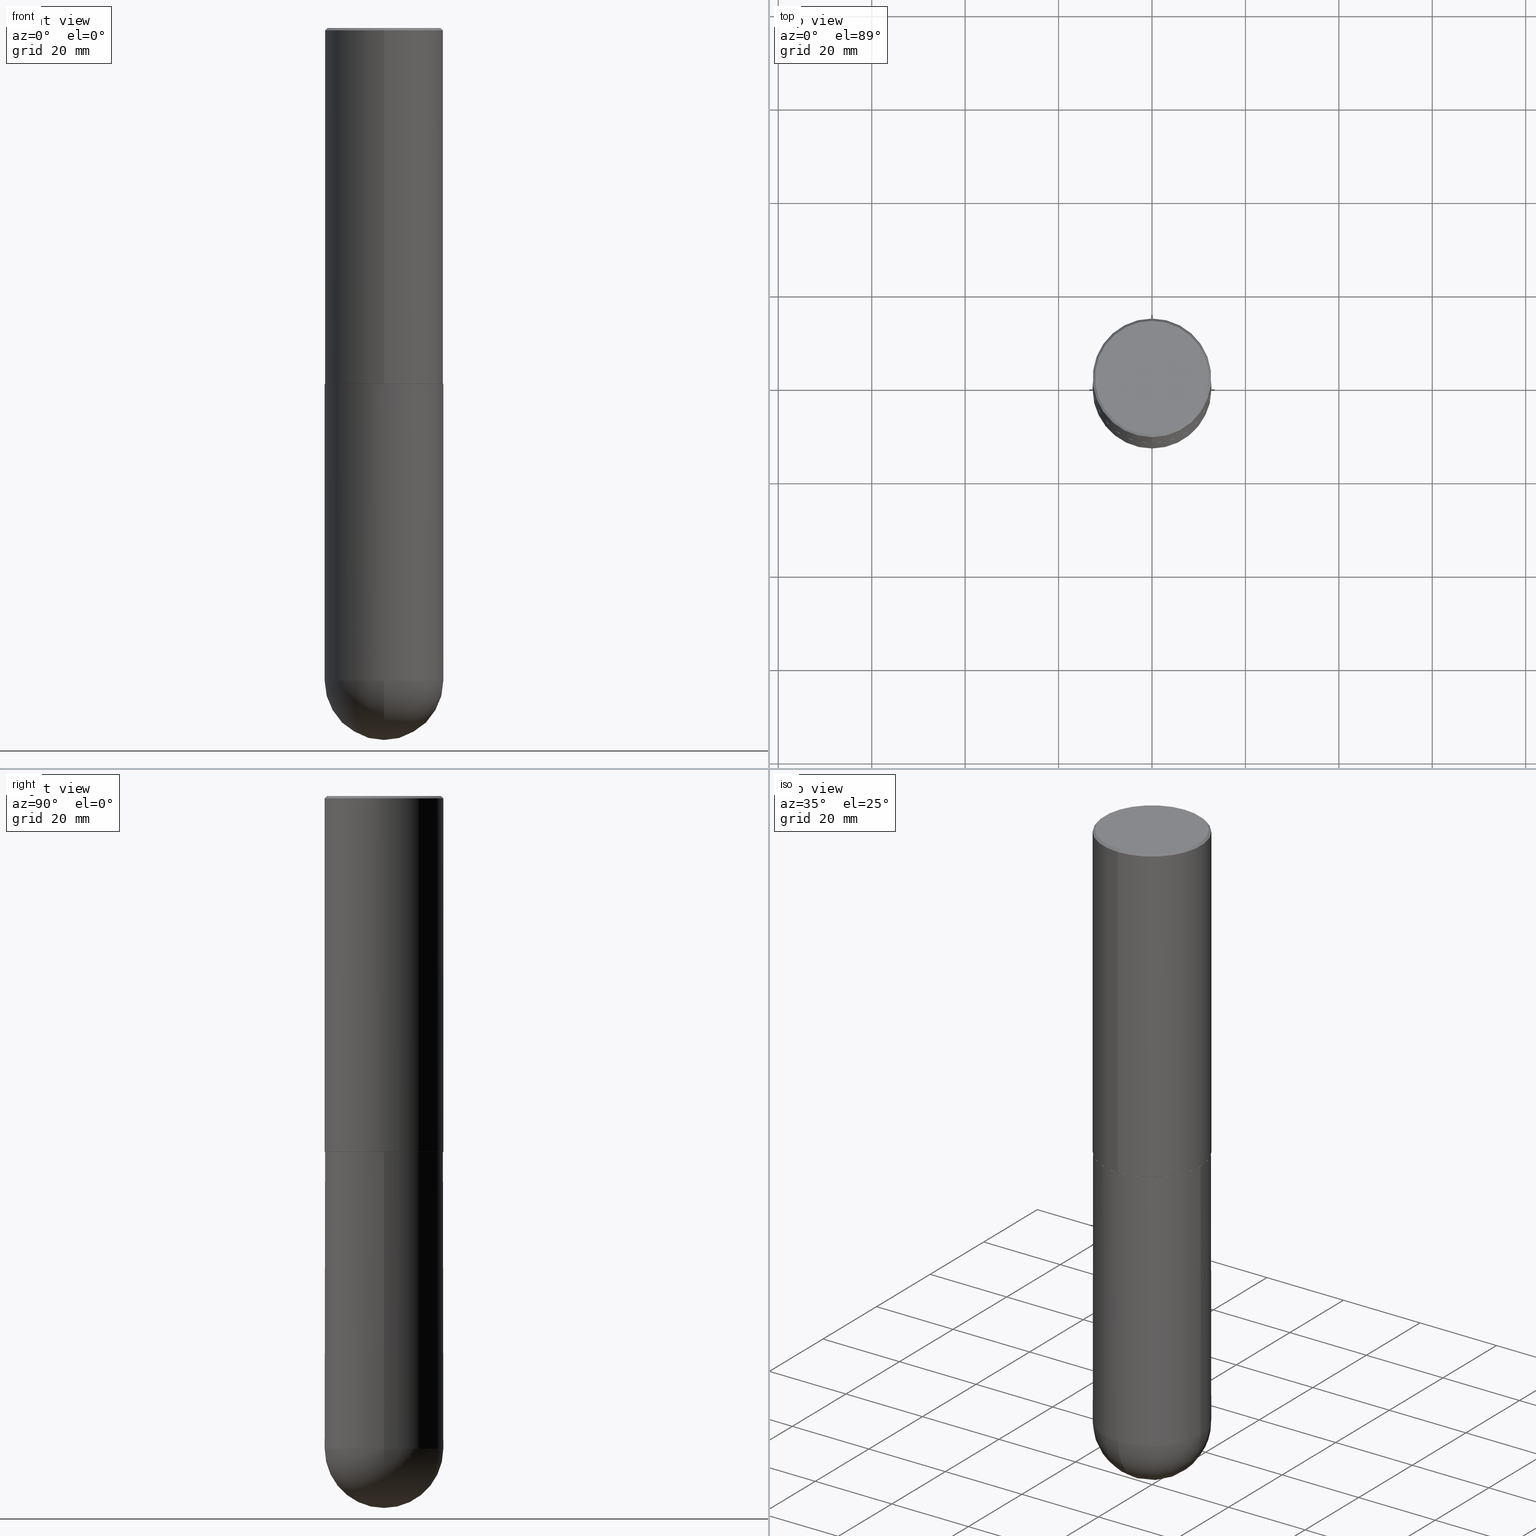
[diagram: canonical four-view strip — front | top / right | iso, engineering-drawing reading convention]
A machine part, canonical four-view strip (front | top / right | iso — engineering-drawing reading convention). The complete STEP part file that produces these views, byte-faithful:
ISO-10303-21;
HEADER;
FILE_DESCRIPTION (( 'STEP AP203' ),
    '1' );
FILE_NAME ('31977.STEP',
    '2024-02-21T17:24:39',
    ( '' ),
    ( '' ),
    'SwSTEP 2.0',
    'SolidWorks 2023',
    '' );
FILE_SCHEMA (( 'CONFIG_CONTROL_DESIGN' ));
ENDSEC;

DATA;
#1 = CC_DESIGN_APPROVAL ( #94, ( #129 ) ) ;
#2 = CALENDAR_DATE ( 2024, 21, 2 ) ;
#3 = CARTESIAN_POINT ( 'NONE',  ( 7.335068172451656657E-29, -1.047636046111825334E-14, -3.000000000000000888 ) ) ;
#4 = CC_DESIGN_PERSON_AND_ORGANIZATION_ASSIGNMENT ( #166, #67, ( #129 ) ) ;
#5 = PERSON_AND_ORGANIZATION ( #354, #120 ) ;
#6 = MANIFOLD_SOLID_BREP ( 'Body-Move/Copy2[2]', #269 ) ;
#7 = LINE ( 'NONE', #139, #23 ) ;
#8 = VERTEX_POINT ( 'NONE', #183 ) ;
#9 = CARTESIAN_POINT ( 'NONE',  ( 1.345007843401825128E-28, -1.920314736363730603E-14, -5.500000000000000888 ) ) ;
#10 = ORIENTED_EDGE ( 'NONE', *, *, #98, .T. ) ;
#11 = AXIS2_PLACEMENT_3D ( 'NONE', #382, #229, #253 ) ;
#12 =( GEOMETRIC_REPRESENTATION_CONTEXT ( 3 ) GLOBAL_UNCERTAINTY_ASSIGNED_CONTEXT ( ( #228 ) ) GLOBAL_UNIT_ASSIGNED_CONTEXT ( ( #390, #289, #410 ) ) REPRESENTATION_CONTEXT ( 'NONE', 'WORKASPACE' ) );
#13 = DIRECTION ( 'NONE',  ( -2.445468806185136597E-29, 3.491481338843145583E-15, 1.000000000000000000 ) ) ;
#14 = ORIENTED_EDGE ( 'NONE', *, *, #411, .F. ) ;
#15 = LINE ( 'NONE', #110, #125 ) ;
#16 = ORIENTED_EDGE ( 'NONE', *, *, #80, .F. ) ;
#17 = CARTESIAN_POINT ( 'NONE',  ( 2.368360758220746932E-44, -3.382627185153323698E-30, -9.686457041185830864E-16 ) ) ;
#18 = CC_DESIGN_PERSON_AND_ORGANIZATION_ASSIGNMENT ( #71, #138, ( #56 ) ) ;
#19 = APPROVAL_ROLE ( '' ) ;
#20 = ORIENTED_EDGE ( 'NONE', *, *, #197, .F. ) ;
#21 = PLANE ( 'NONE',  #60 ) ;
#22 = AXIS2_PLACEMENT_3D ( 'NONE', #36, #220, #196 ) ;
#23 = VECTOR ( 'NONE', #391, 39.37007874015748143 ) ;
#24 = EDGE_CURVE ( 'NONE', #262, #86, #57, .T. ) ;
#25 = FACE_OUTER_BOUND ( 'NONE', #116, .T. ) ;
#26 = EDGE_LOOP ( 'NONE', ( #122, #43, #49, #178, #301 ) ) ;
#27 = APPROVAL ( #108, 'UNSPECIFIED' ) ;
#28 = CLOSED_SHELL ( 'NONE', ( #292, #155, #376, #357, #127 ) ) ;
#29 = CYLINDRICAL_SURFACE ( 'NONE', #102, 0.5000000000000002220 ) ;
#30 = LOCAL_TIME ( 12, 24, 39.00000000000000000, #224 ) ;
#31 = DIRECTION ( 'NONE',  ( -1.000000000000000000, 7.105427357601001070E-15, -4.926315508542082329E-29 ) ) ;
#32 = CARTESIAN_POINT ( 'NONE',  ( 4.890045448301129813E-31, -6.984240307412204920E-17, -0.02000000000000010797 ) ) ;
#33 = EDGE_CURVE ( 'NONE', #97, #173, #272, .T. ) ;
#34 = AXIS2_PLACEMENT_3D ( 'NONE', #17, #394, #205 ) ;
#35 = FACE_OUTER_BOUND ( 'NONE', #180, .T. ) ;
#36 = CARTESIAN_POINT ( 'NONE',  ( 3.351822085289413859E-15, 0.4800000000000008704, -2.160540525838214906E-15 ) ) ;
#37 = ADVANCED_FACE ( 'NONE', ( #186 ), #29, .T. ) ;
#38 = CC_DESIGN_PERSON_AND_ORGANIZATION_ASSIGNMENT ( #132, #63, ( #370 ) ) ;
#39 = CARTESIAN_POINT ( 'NONE',  ( 7.336406418555409790E-29, -1.047444401652943635E-14, -3.000000000000000444 ) ) ;
#40 = CIRCLE ( 'NONE', #319, 0.4989999999999999991 ) ;
#41 = DATE_AND_TIME ( #2, #111 ) ;
#42 = CARTESIAN_POINT ( 'NONE',  ( 4.890045448301129813E-31, -6.984240307412204920E-17, -0.02000000000000010797 ) ) ;
#43 = ORIENTED_EDGE ( 'NONE', *, *, #305, .T. ) ;
#44 = DATE_AND_TIME ( #130, #182 ) ;
#45 = ORIENTED_EDGE ( 'NONE', *, *, #189, .T. ) ;
#46 = PRODUCT_DEFINITION_SHAPE ( 'NONE', 'NONE',  #370 ) ;
#47 = DIRECTION ( 'NONE',  ( -2.445468806185136877E-29, 3.491481338843145188E-15, 1.000000000000000000 ) ) ;
#48 = ORIENTED_EDGE ( 'NONE', *, *, #298, .T. ) ;
#49 = ORIENTED_EDGE ( 'NONE', *, *, #408, .T. ) ;
#50 = LINE ( 'NONE', #172, #250 ) ;
#51 = ORIENTED_EDGE ( 'NONE', *, *, #298, .F. ) ;
#52 = ADVANCED_FACE ( 'NONE', ( #25 ), #192, .T. ) ;
#53 = DIRECTION ( 'NONE',  ( -6.982962677686265922E-15, -1.000000000000000000, 3.284787166730577015E-15 ) ) ;
#54 = EDGE_LOOP ( 'NONE', ( #281, #392, #140, #333, #307 ) ) ;
#55 = DIRECTION ( 'NONE',  ( 1.000000000000000000, -6.982962677686265922E-15, 4.883557194083112340E-29 ) ) ;
#56 = SECURITY_CLASSIFICATION ( '', '', #313 ) ;
#57 = LINE ( 'NONE', #185, #95 ) ;
#58 = DIRECTION ( 'NONE',  ( -6.982962677686265922E-15, -1.000000000000000000, 3.492120153706083922E-15 ) ) ;
#59 = DIRECTION ( 'NONE',  ( 6.982962677686265922E-15, 1.000000000000000000, -3.491643216902136408E-15 ) ) ;
#60 = AXIS2_PLACEMENT_3D ( 'NONE', #271, #361, #81 ) ;
#61 = EDGE_CURVE ( 'NONE', #262, #204, #150, .T. ) ;
#62 = DIRECTION ( 'NONE',  ( -2.445468806185136597E-29, 3.491481338843145583E-15, 1.000000000000000000 ) ) ;
#63 = PERSON_AND_ORGANIZATION_ROLE ( 'creator' ) ;
#64 = DIRECTION ( 'NONE',  ( 6.982962677686265922E-15, 1.000000000000000000, -3.491643216902136408E-15 ) ) ;
#65 = AXIS2_PLACEMENT_3D ( 'NONE', #99, #340, #223 ) ;
#66 = APPROVAL_PERSON_ORGANIZATION ( #69, #94, #198 ) ;
#67 = PERSON_AND_ORGANIZATION_ROLE ( 'design_supplier' ) ;
#68 = CARTESIAN_POINT ( 'NONE',  ( 1.345007843401825128E-28, -1.920314736363730603E-14, -5.500000000000000888 ) ) ;
#69 = PERSON_AND_ORGANIZATION ( #354, #120 ) ;
#70 = DIRECTION ( 'NONE',  ( -2.445468806185136597E-29, 3.491481338843145583E-15, 1.000000000000000000 ) ) ;
#71 = PERSON_AND_ORGANIZATION ( #354, #120 ) ;
#72 = CYLINDRICAL_SURFACE ( 'NONE', #90, 0.5000000000000002220 ) ;
#73 = APPROVAL_PERSON_ORGANIZATION ( #283, #27, #351 ) ;
#74 = APPROVAL_DATE_TIME ( #44, #94 ) ;
#75 = ORIENTED_EDGE ( 'NONE', *, *, #338, .T. ) ;
#76 = DIRECTION ( 'NONE',  ( -2.445022724150551752E-29, 3.492120153706083922E-15, 1.000000000000000000 ) ) ;
#77 = ADVANCED_BREP_SHAPE_REPRESENTATION ( '31977', ( #276, #6, #308 ), #12 ) ;
#78 = SHAPE_DEFINITION_REPRESENTATION ( #46, #77 ) ;
#79 = ORIENTED_EDGE ( 'NONE', *, *, #161, .F. ) ;
#80 = EDGE_CURVE ( 'NONE', #264, #8, #278, .T. ) ;
#81 = DIRECTION ( 'NONE',  ( -1.000000000000000000, 6.982962677686265922E-15, -4.876176775795935793E-29 ) ) ;
#82 = ORIENTED_EDGE ( 'NONE', *, *, #408, .F. ) ;
#83 = CARTESIAN_POINT ( 'NONE',  ( -3.430248998885764992E-15, -0.5000000000000001110, -0.01999999999999835937 ) ) ;
#84 = EDGE_LOOP ( 'NONE', ( #14, #401, #259, #267 ) ) ;
#85 = AXIS2_PLACEMENT_3D ( 'NONE', #399, #181, #121 ) ;
#86 = VERTEX_POINT ( 'NONE', #282 ) ;
#87 = DIRECTION ( 'NONE',  ( -6.982962677686265133E-15, -1.000000000000000000, 3.278217592397113101E-15 ) ) ;
#88 = DATE_AND_TIME ( #234, #295 ) ;
#89 = ADVANCED_FACE ( 'NONE', ( #255 ), #256, .F. ) ;
#90 = AXIS2_PLACEMENT_3D ( 'NONE', #320, #169, #288 ) ;
#91 = DIRECTION ( 'NONE',  ( -2.445022724150551752E-29, 3.492120153706083922E-15, 1.000000000000000000 ) ) ;
#92 = DIRECTION ( 'NONE',  ( -6.982962677686265922E-15, -1.000000000000000000, 3.492120153706083528E-15 ) ) ;
#93 = EDGE_LOOP ( 'NONE', ( #331, #145, #206, #275 ) ) ;
#94 = APPROVAL ( #200, 'UNSPECIFIED' ) ;
#95 = VECTOR ( 'NONE', #219, 39.37007874015748143 ) ;
#96 = CIRCLE ( 'NONE', #367, 0.5000000000000000000 ) ;
#97 = VERTEX_POINT ( 'NONE', #231 ) ;
#98 = EDGE_CURVE ( 'NONE', #156, #171, #249, .T. ) ;
#99 = CARTESIAN_POINT ( 'NONE',  ( 1.311895865610436840E-28, -1.967732973177735475E-14, -5.500000000000000888 ) ) ;
#100 = COORDINATED_UNIVERSAL_TIME_OFFSET ( 5, 0, .BEHIND. ) ;
#101 = DIRECTION ( 'NONE',  ( 1.000000000000000000, -6.982962677686266711E-15, 4.876176775795935793E-29 ) ) ;
#102 = AXIS2_PLACEMENT_3D ( 'NONE', #274, #404, #92 ) ;
#103 = AXIS2_PLACEMENT_3D ( 'NONE', #42, #311, #64 ) ;
#104 = DIMENSIONAL_EXPONENTS ( 1.000000000000000000, 0.000000000000000000, 0.000000000000000000, 0.000000000000000000, 0.000000000000000000, 0.000000000000000000, 0.000000000000000000 ) ;
#105 = MECHANICAL_CONTEXT ( 'NONE', #306, 'mechanical' ) ;
#106 = CARTESIAN_POINT ( 'NONE',  ( 3.549160965121774973E-15, 0.4989999999999895630, -3.000000000000002220 ) ) ;
#107 = CARTESIAN_POINT ( 'NONE',  ( 3.491481338843133355E-15, 0.4999999999999999445, -0.02000000000000185310 ) ) ;
#108 = APPROVAL_STATUS ( 'not_yet_approved' ) ;
#109 = PRODUCT_RELATED_PRODUCT_CATEGORY ( 'detail', '', ( #245 ) ) ;
#110 = CARTESIAN_POINT ( 'NONE',  ( -3.484498376165373188E-15, -0.4990000000000104352, -2.999999999999999112 ) ) ;
#111 = LOCAL_TIME ( 12, 24, 39.00000000000000000, #285 ) ;
#112 = ORIENTED_EDGE ( 'NONE', *, *, #184, .F. ) ;
#113 = DIRECTION ( 'NONE',  ( -2.445468806185136597E-29, 3.491481338843145583E-15, 1.000000000000000000 ) ) ;
#114 = ORIENTED_EDGE ( 'NONE', *, *, #33, .T. ) ;
#115 = FACE_OUTER_BOUND ( 'NONE', #176, .T. ) ;
#116 = EDGE_LOOP ( 'NONE', ( #329, #51, #248, #75 ) ) ;
#117 = CARTESIAN_POINT ( 'NONE',  ( -0.5000000000000000000, -1.128608201128287263E-14, -5.500000000000000888 ) ) ;
#118 = CC_DESIGN_PERSON_AND_ORGANIZATION_ASSIGNMENT ( #5, #232, ( #245 ) ) ;
#119 = ORIENTED_EDGE ( 'NONE', *, *, #61, .T. ) ;
#120 = ORGANIZATION ( 'UNSPECIFIED', 'UNSPECIFIED', '' ) ;
#121 = DIRECTION ( 'NONE',  ( -6.982962677686265922E-15, -1.000000000000000000, 3.491643216902136408E-15 ) ) ;
#122 = ORIENTED_EDGE ( 'NONE', *, *, #133, .F. ) ;
#123 = ADVANCED_FACE ( 'NONE', ( #35 ), #312, .T. ) ;
#124 = AXIS2_PLACEMENT_3D ( 'NONE', #39, #131, #134 ) ;
#125 = VECTOR ( 'NONE', #366, 39.37007874015748854 ) ;
#126 = CONICAL_SURFACE ( 'NONE', #373, 0.4989999999999999991, 0.7853981633974824739 ) ;
#127 = ADVANCED_FACE ( 'NONE', ( #350 ), #193, .T. ) ;
#128 = DIRECTION ( 'NONE',  ( -2.445022724150551752E-29, 3.492120153706083922E-15, 1.000000000000000000 ) ) ;
#129 = PRODUCT_DEFINITION_FORMATION_WITH_SPECIFIED_SOURCE ( 'ANY', '', #245, .NOT_KNOWN. ) ;
#130 = CALENDAR_DATE ( 2024, 21, 2 ) ;
#131 = DIRECTION ( 'NONE',  ( -2.445468806185136597E-29, 3.491481338843145583E-15, 1.000000000000000000 ) ) ;
#132 = PERSON_AND_ORGANIZATION ( #354, #120 ) ;
#133 = EDGE_CURVE ( 'NONE', #398, #171, #226, .T. ) ;
#134 = DIRECTION ( 'NONE',  ( 1.000000000000000000, -6.982962677686266711E-15, 0.000000000000000000 ) ) ;
#135 = PLANE ( 'NONE',  #343 ) ;
#136 = AXIS2_PLACEMENT_3D ( 'NONE', #210, #13, #207 ) ;
#137 = DIRECTION ( 'NONE',  ( -6.982962677686265922E-15, -1.000000000000000000, 3.284787166730577015E-15 ) ) ;
#138 = PERSON_AND_ORGANIZATION_ROLE ( 'classification_officer' ) ;
#139 = CARTESIAN_POINT ( 'NONE',  ( -3.430248998885764992E-15, -0.5000000000000001110, -0.01999999999999835937 ) ) ;
#140 = ORIENTED_EDGE ( 'NONE', *, *, #98, .F. ) ;
#141 = DIRECTION ( 'NONE',  ( -2.445022724150551752E-29, 3.492120153706083922E-15, 1.000000000000000000 ) ) ;
#142 = CIRCLE ( 'NONE', #218, 0.5000000000000000000 ) ;
#143 = EDGE_LOOP ( 'NONE', ( #48, #114 ) ) ;
#144 = CARTESIAN_POINT ( 'NONE',  ( 3.491481338843267462E-15, 0.4999999999999808487, -5.500000000000002665 ) ) ;
#145 = ORIENTED_EDGE ( 'NONE', *, *, #24, .T. ) ;
#146 = DIRECTION ( 'NONE',  ( -2.445022724150551752E-29, 3.492120153706083922E-15, 1.000000000000000000 ) ) ;
#147 = ORIENTED_EDGE ( 'NONE', *, *, #237, .T. ) ;
#148 = DIRECTION ( 'NONE',  ( 6.982962677686265922E-15, 1.000000000000000000, 0.000000000000000000 ) ) ;
#149 = COORDINATED_UNIVERSAL_TIME_OFFSET ( 5, 0, .BEHIND. ) ;
#150 = CIRCLE ( 'NONE', #377, 0.5000000000000004441 ) ;
#151 = ORIENTED_EDGE ( 'NONE', *, *, #80, .T. ) ;
#152 = CONICAL_SURFACE ( 'NONE', #103, 0.5000000000000000000, 0.7853981633974473908 ) ;
#153 = CARTESIAN_POINT ( 'NONE',  ( 0.5000000000000000000, -3.491481338843133355E-15, 2.438088387897967896E-29 ) ) ;
#154 = DIRECTION ( 'NONE',  ( -6.982962677686265133E-15, -1.000000000000000000, 3.278217592397113101E-15 ) ) ;
#155 = ADVANCED_FACE ( 'NONE', ( #380 ), #199, .T. ) ;
#156 = VERTEX_POINT ( 'NONE', #348 ) ;
#157 = ADVANCED_FACE ( 'NONE', ( #317 ), #135, .F. ) ;
#158 = AXIS2_PLACEMENT_3D ( 'NONE', #190, #70, #101 ) ;
#159 = DIRECTION ( 'NONE',  ( -6.982962677686265922E-15, -1.000000000000000000, 3.491643216902136408E-15 ) ) ;
#160 = AXIS2_PLACEMENT_3D ( 'NONE', #236, #327, #53 ) ;
#161 = EDGE_CURVE ( 'NONE', #299, #397, #174, .T. ) ;
#162 = CC_DESIGN_DATE_AND_TIME_ASSIGNMENT ( #227, #195, ( #370 ) ) ;
#163 = LENGTH_MEASURE_WITH_UNIT ( LENGTH_MEASURE( 0.02539999999999999897 ), #345 );
#164 = DIRECTION ( 'NONE',  ( 1.000000000000000000, -6.982962677686270655E-15, 0.000000000000000000 ) ) ;
#165 = DIRECTION ( 'NONE',  ( -2.445468806185136877E-29, 3.491481338843145188E-15, 1.000000000000000000 ) ) ;
#166 = PERSON_AND_ORGANIZATION ( #354, #120 ) ;
#167 = CARTESIAN_POINT ( 'NONE',  ( 7.335068172451655536E-29, -1.047636046111825177E-14, -3.000000000000000444 ) ) ;
#168 = ADVANCED_FACE ( 'NONE', ( #315 ), #152, .T. ) ;
#169 = DIRECTION ( 'NONE',  ( -2.445022724150551752E-29, 3.492120153706083922E-15, 1.000000000000000000 ) ) ;
#170 = DIRECTION ( 'NONE',  ( 5.024295867788231995E-15, 0.7071067811865739960, 0.7071067811865208164 ) ) ;
#171 = VERTEX_POINT ( 'NONE', #314 ) ;
#172 = CARTESIAN_POINT ( 'NONE',  ( -3.491481338843134539E-15, -0.5000000000000002220, 1.746060076853042553E-15 ) ) ;
#173 = VERTEX_POINT ( 'NONE', #388 ) ;
#174 = CIRCLE ( 'NONE', #402, 0.5000000000000000000 ) ;
#175 = LOCAL_TIME ( 12, 24, 39.00000000000000000, #381 ) ;
#176 = EDGE_LOOP ( 'NONE', ( #10, #365 ) ) ;
#177 = DIRECTION ( 'NONE',  ( 1.000000000000000000, -6.982962677686266711E-15, 0.000000000000000000 ) ) ;
#178 = ORIENTED_EDGE ( 'NONE', *, *, #284, .T. ) ;
#179 = DIRECTION ( 'NONE',  ( -6.982962677686265922E-15, -1.000000000000000000, 3.284787166730577015E-15 ) ) ;
#180 = EDGE_LOOP ( 'NONE', ( #147, #265, #326, #363 ) ) ;
#181 = DIRECTION ( 'NONE',  ( -2.445022724150551752E-29, 3.492120153706083922E-15, 1.000000000000000000 ) ) ;
#182 = LOCAL_TIME ( 12, 24, 39.00000000000000000, #100 ) ;
#183 = CARTESIAN_POINT ( 'NONE',  ( -3.552713678800369978E-15, -0.5000000000000196509, -5.499999999999999112 ) ) ;
#184 = EDGE_CURVE ( 'NONE', #209, #356, #40, .T. ) ;
#185 = CARTESIAN_POINT ( 'NONE',  ( 3.552713678800501718E-15, 0.5000000000000002220, -1.746060076853042553E-15 ) ) ;
#186 = FACE_OUTER_BOUND ( 'NONE', #93, .T. ) ;
#187 = AXIS2_PLACEMENT_3D ( 'NONE', #241, #389, #379 ) ;
#188 = CARTESIAN_POINT ( 'NONE',  ( 1.311895865610436840E-28, -1.967732973177735475E-14, -5.500000000000000888 ) ) ;
#189 = EDGE_CURVE ( 'NONE', #242, #86, #142, .T. ) ;
#190 = CARTESIAN_POINT ( 'NONE',  ( 0.000000000000000000, 0.000000000000000000, 0.000000000000000000 ) ) ;
#191 = APPROVAL_DATE_TIME ( #355, #27 ) ;
#192 = CONICAL_SURFACE ( 'NONE', #216, 0.5000000000000000000, 0.7853981633974473908 ) ;
#193 = CYLINDRICAL_SURFACE ( 'NONE', #158, 0.5000000000000000000 ) ;
#194 = CIRCLE ( 'NONE', #34, 0.4800000000000008704 ) ;
#195 = DATE_TIME_ROLE ( 'creation_date' ) ;
#196 = DIRECTION ( 'NONE',  ( 6.982962677686265922E-15, 1.000000000000000000, -3.492120153706083922E-15 ) ) ;
#197 = EDGE_CURVE ( 'NONE', #173, #86, #280, .T. ) ;
#198 = APPROVAL_ROLE ( '' ) ;
#199 = SPHERICAL_SURFACE ( 'NONE', #65, 0.5000000000000005551 ) ;
#200 = APPROVAL_STATUS ( 'not_yet_approved' ) ;
#201 = DIRECTION ( 'NONE',  ( -7.105427357601000281E-15, -1.000000000000000000, 0.000000000000000000 ) ) ;
#202 = AXIS2_PLACEMENT_3D ( 'NONE', #188, #31, #201 ) ;
#203 = PERSON_AND_ORGANIZATION_ROLE ( 'creator' ) ;
#204 = VERTEX_POINT ( 'NONE', #385 ) ;
#205 = DIRECTION ( 'NONE',  ( -6.982962677686265922E-15, -1.000000000000000000, 3.492120153706083922E-15 ) ) ;
#206 = ORIENTED_EDGE ( 'NONE', *, *, #189, .F. ) ;
#207 = DIRECTION ( 'NONE',  ( 1.000000000000000000, -6.982962677686270655E-15, 0.000000000000000000 ) ) ;
#208 = DATE_TIME_ROLE ( 'classification_date' ) ;
#209 = VERTEX_POINT ( 'NONE', #106 ) ;
#210 = CARTESIAN_POINT ( 'NONE',  ( 1.345007843401825128E-28, -1.920314736363730603E-14, -5.500000000000000888 ) ) ;
#211 = AXIS2_PLACEMENT_3D ( 'NONE', #364, #113, #177 ) ;
#212 = ORIENTED_EDGE ( 'NONE', *, *, #305, .F. ) ;
#213 = FACE_OUTER_BOUND ( 'NONE', #54, .T. ) ;
#214 = EDGE_LOOP ( 'NONE', ( #324, #119, #374, #235 ) ) ;
#215 = DIRECTION ( 'NONE',  ( -2.445468806185136597E-29, 3.491481338843145583E-15, 1.000000000000000000 ) ) ;
#216 = AXIS2_PLACEMENT_3D ( 'NONE', #337, #304, #59 ) ;
#217 = CIRCLE ( 'NONE', #187, 0.5000000000000000000 ) ;
#218 = AXIS2_PLACEMENT_3D ( 'NONE', #32, #412, #159 ) ;
#219 = DIRECTION ( 'NONE',  ( -2.445022724150551752E-29, 3.492120153706083922E-15, 1.000000000000000000 ) ) ;
#220 = DIRECTION ( 'NONE',  ( 2.445022724150551191E-29, -3.492120153706083922E-15, -1.000000000000000000 ) ) ;
#221 = CARTESIAN_POINT ( 'NONE',  ( 0.000000000000000000, 0.000000000000000000, 0.000000000000000000 ) ) ;
#222 = ADVANCED_FACE ( 'NONE', ( #407 ), #72, .T. ) ;
#223 = DIRECTION ( 'NONE',  ( 6.982962677686265922E-15, 1.000000000000000000, -4.370956789862816416E-15 ) ) ;
#224 = COORDINATED_UNIVERSAL_TIME_OFFSET ( 5, 0, .BEHIND. ) ;
#225 = CC_DESIGN_SECURITY_CLASSIFICATION ( #56, ( #129 ) ) ;
#226 = LINE ( 'NONE', #409, #246 ) ;
#227 = DATE_AND_TIME ( #318, #175 ) ;
#228 = UNCERTAINTY_MEASURE_WITH_UNIT (LENGTH_MEASURE( 1.000000000000000082E-05 ), #390, 'distance_accuracy_value', 'NONE');
#229 = DIRECTION ( 'NONE',  ( -2.445022724150551752E-29, 3.492120153706083922E-15, 1.000000000000000000 ) ) ;
#230 = EDGE_CURVE ( 'NONE', #97, #242, #7, .T. ) ;
#231 = CARTESIAN_POINT ( 'NONE',  ( -3.361644018908052816E-15, -0.4800000000000008704, 7.075719696603405724E-16 ) ) ;
#232 = PERSON_AND_ORGANIZATION_ROLE ( 'design_owner' ) ;
#233 = CYLINDRICAL_SURFACE ( 'NONE', #406, 0.5000000000000000000 ) ;
#234 = CALENDAR_DATE ( 2024, 21, 2 ) ;
#235 = ORIENTED_EDGE ( 'NONE', *, *, #338, .F. ) ;
#236 = CARTESIAN_POINT ( 'NONE',  ( 7.335068172451656657E-29, -1.047636046111825334E-14, -3.000000000000000888 ) ) ;
#237 = EDGE_CURVE ( 'NONE', #356, #209, #273, .T. ) ;
#238 = EDGE_LOOP ( 'NONE', ( #296, #112 ) ) ;
#239 = CARTESIAN_POINT ( 'NONE',  ( 7.335068172451656657E-29, -1.047636046111825334E-14, -3.000000000000000888 ) ) ;
#240 = ORIENTED_EDGE ( 'NONE', *, *, #371, .F. ) ;
#241 = CARTESIAN_POINT ( 'NONE',  ( 1.345007843401825128E-28, -1.920314736363730603E-14, -5.500000000000000888 ) ) ;
#242 = VERTEX_POINT ( 'NONE', #83 ) ;
#243 = CARTESIAN_POINT ( 'NONE',  ( 7.332623149727504925E-29, -1.047286834096454774E-14, -2.999000000000000554 ) ) ;
#244 = EDGE_CURVE ( 'NONE', #356, #204, #15, .T. ) ;
#245 = PRODUCT ( '31977', '31977', '', ( #105 ) ) ;
#246 = VECTOR ( 'NONE', #165, 39.37007874015748143 ) ;
#247 = CC_DESIGN_APPROVAL ( #27, ( #370 ) ) ;
#248 = ORIENTED_EDGE ( 'NONE', *, *, #197, .T. ) ;
#249 = CIRCLE ( 'NONE', #124, 0.5000000000000000000 ) ;
#250 = VECTOR ( 'NONE', #76, 39.37007874015748143 ) ;
#251 = EDGE_CURVE ( 'NONE', #204, #242, #50, .T. ) ;
#252 = APPLICATION_PROTOCOL_DEFINITION ( 'international standard', 'config_control_design', 1994, #395 ) ;
#253 = DIRECTION ( 'NONE',  ( -6.982962677686265922E-15, -1.000000000000000000, 3.284787166730577015E-15 ) ) ;
#254 = CALENDAR_DATE ( 2024, 21, 2 ) ;
#255 = FACE_OUTER_BOUND ( 'NONE', #143, .T. ) ;
#256 = PLANE ( 'NONE',  #22 ) ;
#257 = DIRECTION ( 'NONE',  ( -2.445022724150551752E-29, 3.492120153706083922E-15, 1.000000000000000000 ) ) ;
#258 = PERSON_AND_ORGANIZATION ( #354, #120 ) ;
#259 = ORIENTED_EDGE ( 'NONE', *, *, #244, .T. ) ;
#260 = CARTESIAN_POINT ( 'NONE',  ( 3.552713678800539584E-15, 0.4999999999999900080, -2.999000000000001886 ) ) ;
#261 = AXIS2_PLACEMENT_3D ( 'NONE', #396, #266, #297 ) ;
#262 = VERTEX_POINT ( 'NONE', #260 ) ;
#263 = SPHERICAL_SURFACE ( 'NONE', #261, 0.5000000000000005551 ) ;
#264 = VERTEX_POINT ( 'NONE', #369 ) ;
#265 = ORIENTED_EDGE ( 'NONE', *, *, #411, .T. ) ;
#266 = DIRECTION ( 'NONE',  ( -1.000000000000000000, 6.982962677686265922E-15, -4.883557194083112901E-29 ) ) ;
#267 = ORIENTED_EDGE ( 'NONE', *, *, #61, .F. ) ;
#268 = DIRECTION ( 'NONE',  ( 1.000000000000000000, -6.982962677686270655E-15, 0.000000000000000000 ) ) ;
#269 = CLOSED_SHELL ( 'NONE', ( #123, #37, #168, #52, #222, #277, #157, #89 ) ) ;
#270 = ORIENTED_EDGE ( 'NONE', *, *, #335, .F. ) ;
#271 = CARTESIAN_POINT ( 'NONE',  ( 3.491481338843206325E-15, 0.4999999999999895639, -3.000000000000001332 ) ) ;
#272 = CIRCLE ( 'NONE', #372, 0.4800000000000008704 ) ;
#273 = CIRCLE ( 'NONE', #160, 0.4989999999999999991 ) ;
#274 = CARTESIAN_POINT ( 'NONE',  ( 0.000000000000000000, 0.000000000000000000, 0.000000000000000000 ) ) ;
#275 = ORIENTED_EDGE ( 'NONE', *, *, #251, .F. ) ;
#276 = MANIFOLD_SOLID_BREP ( 'Body-Move/Copy2[1]', #28 ) ;
#277 = ADVANCED_FACE ( 'NONE', ( #322 ), #126, .T. ) ;
#278 = CIRCLE ( 'NONE', #202, 0.5000000000000005551 ) ;
#279 = VECTOR ( 'NONE', #170, 39.37007874015748854 ) ;
#280 = LINE ( 'NONE', #107, #400 ) ;
#281 = ORIENTED_EDGE ( 'NONE', *, *, #371, .T. ) ;
#282 = CARTESIAN_POINT ( 'NONE',  ( 3.491481338843133355E-15, 0.4999999999999999445, -0.02000000000000185310 ) ) ;
#283 = PERSON_AND_ORGANIZATION ( #354, #120 ) ;
#284 = EDGE_CURVE ( 'NONE', #299, #156, #300, .T. ) ;
#285 = COORDINATED_UNIVERSAL_TIME_OFFSET ( 5, 0, .BEHIND. ) ;
#286 = DIRECTION ( 'NONE',  ( -2.445022724150551191E-29, 3.492120153706083922E-15, 1.000000000000000000 ) ) ;
#287 = DIRECTION ( 'NONE',  ( 0.000000000000000000, 0.000000000000000000, 1.000000000000000000 ) ) ;
#288 = DIRECTION ( 'NONE',  ( -6.982962677686265922E-15, -1.000000000000000000, 3.492120153706083528E-15 ) ) ;
#289 =( NAMED_UNIT ( * ) PLANE_ANGLE_UNIT ( ) SI_UNIT ( $, .RADIAN. ) );
#290 = ORIENTED_EDGE ( 'NONE', *, *, #335, .T. ) ;
#291 = DIRECTION ( 'NONE',  ( -2.445468806185136597E-29, 3.491481338843145583E-15, 1.000000000000000000 ) ) ;
#292 = ADVANCED_FACE ( 'NONE', ( #213 ), #233, .T. ) ;
#293 = EDGE_LOOP ( 'NONE', ( #362, #321, #45, #20 ) ) ;
#294 = CARTESIAN_POINT ( 'NONE',  ( 0.5000000000000000000, -1.833027702892651007E-14, -5.500000000000000888 ) ) ;
#295 = LOCAL_TIME ( 12, 24, 39.00000000000000000, #149 ) ;
#296 = ORIENTED_EDGE ( 'NONE', *, *, #237, .F. ) ;
#297 = DIRECTION ( 'NONE',  ( 6.982962677686265922E-15, 1.000000000000000000, -4.370956789862816416E-15 ) ) ;
#298 = EDGE_CURVE ( 'NONE', #173, #97, #194, .T. ) ;
#299 = VERTEX_POINT ( 'NONE', #294 ) ;
#300 = LINE ( 'NONE', #153, #393 ) ;
#301 = ORIENTED_EDGE ( 'NONE', *, *, #336, .F. ) ;
#302 = CARTESIAN_POINT ( 'NONE',  ( -3.484498376165373188E-15, -0.4990000000000104352, -2.999999999999999112 ) ) ;
#303 = AXIS2_PLACEMENT_3D ( 'NONE', #332, #55, #148 ) ;
#304 = DIRECTION ( 'NONE',  ( 2.445022724150551752E-29, -3.492120153706083922E-15, -1.000000000000000000 ) ) ;
#305 = EDGE_CURVE ( 'NONE', #398, #8, #96, .T. ) ;
#306 = APPLICATION_CONTEXT ( 'configuration controlled 3d designs of mechanical parts and assemblies' ) ;
#307 = ORIENTED_EDGE ( 'NONE', *, *, #161, .T. ) ;
#308 = AXIS2_PLACEMENT_3D ( 'NONE', #221, #287, #341 ) ;
#309 = APPROVAL ( #323, 'UNSPECIFIED' ) ;
#310 = CARTESIAN_POINT ( 'NONE',  ( 7.332623149727504925E-29, -1.047286834096454774E-14, -2.999000000000000554 ) ) ;
#311 = DIRECTION ( 'NONE',  ( 2.445022724150551752E-29, -3.492120153706083922E-15, -1.000000000000000000 ) ) ;
#312 = CONICAL_SURFACE ( 'NONE', #11, 0.4989999999999999991, 0.7853981633974824739 ) ;
#313 = SECURITY_CLASSIFICATION_LEVEL ( 'unclassified' ) ;
#314 = CARTESIAN_POINT ( 'NONE',  ( -0.5000000000000000000, -1.128608201128286947E-14, -3.000000000000000444 ) ) ;
#315 = FACE_OUTER_BOUND ( 'NONE', #293, .T. ) ;
#316 = PERSON_AND_ORGANIZATION ( #354, #120 ) ;
#317 = FACE_OUTER_BOUND ( 'NONE', #238, .T. ) ;
#318 = CALENDAR_DATE ( 2024, 21, 2 ) ;
#319 = AXIS2_PLACEMENT_3D ( 'NONE', #3, #257, #137 ) ;
#320 = CARTESIAN_POINT ( 'NONE',  ( 0.000000000000000000, 0.000000000000000000, 0.000000000000000000 ) ) ;
#321 = ORIENTED_EDGE ( 'NONE', *, *, #230, .T. ) ;
#322 = FACE_OUTER_BOUND ( 'NONE', #84, .T. ) ;
#323 = APPROVAL_STATUS ( 'not_yet_approved' ) ;
#324 = ORIENTED_EDGE ( 'NONE', *, *, #24, .F. ) ;
#325 = FACE_OUTER_BOUND ( 'NONE', #368, .T. ) ;
#326 = ORIENTED_EDGE ( 'NONE', *, *, #353, .F. ) ;
#327 = DIRECTION ( 'NONE',  ( -2.445022724150551752E-29, 3.492120153706083922E-15, 1.000000000000000000 ) ) ;
#328 = CIRCLE ( 'NONE', #303, 0.5000000000000005551 ) ;
#329 = ORIENTED_EDGE ( 'NONE', *, *, #230, .F. ) ;
#330 = CARTESIAN_POINT ( 'NONE',  ( 0.000000000000000000, 0.000000000000000000, 0.000000000000000000 ) ) ;
#331 = ORIENTED_EDGE ( 'NONE', *, *, #353, .T. ) ;
#332 = CARTESIAN_POINT ( 'NONE',  ( 1.311895865610436840E-28, -1.967732973177735475E-14, -5.500000000000000888 ) ) ;
#333 = ORIENTED_EDGE ( 'NONE', *, *, #284, .F. ) ;
#334 = APPROVAL_PERSON_ORGANIZATION ( #258, #309, #19 ) ;
#335 = EDGE_CURVE ( 'NONE', #264, #397, #328, .T. ) ;
#336 = EDGE_CURVE ( 'NONE', #171, #156, #383, .T. ) ;
#337 = CARTESIAN_POINT ( 'NONE',  ( 4.890045448301129813E-31, -6.984240307412204920E-17, -0.02000000000000010797 ) ) ;
#338 = EDGE_CURVE ( 'NONE', #86, #242, #378, .T. ) ;
#339 = CIRCLE ( 'NONE', #136, 0.5000000000000000000 ) ;
#340 = DIRECTION ( 'NONE',  ( -1.000000000000000000, 6.982962677686265922E-15, -4.883557194083112901E-29 ) ) ;
#341 = DIRECTION ( 'NONE',  ( 1.000000000000000000, 0.000000000000000000, 0.000000000000000000 ) ) ;
#342 = DIRECTION ( 'NONE',  ( -6.982962677686265922E-15, -1.000000000000000000, 3.492120153706083922E-15 ) ) ;
#343 = AXIS2_PLACEMENT_3D ( 'NONE', #167, #286, #342 ) ;
#344 = AXIS2_PLACEMENT_3D ( 'NONE', #243, #141, #87 ) ;
#345 =( LENGTH_UNIT ( ) NAMED_UNIT ( * ) SI_UNIT ( $, .METRE. ) );
#346 = CIRCLE ( 'NONE', #344, 0.5000000000000004441 ) ;
#347 = DESIGN_CONTEXT ( 'detailed design', #395, 'design' ) ;
#348 = CARTESIAN_POINT ( 'NONE',  ( 0.5000000000000000000, -1.396592535537257129E-14, -3.000000000000000444 ) ) ;
#349 = CARTESIAN_POINT ( 'NONE',  ( 3.545608251442972496E-15, 0.4989999999999895630, -3.000000000000002220 ) ) ;
#350 = FACE_OUTER_BOUND ( 'NONE', #26, .T. ) ;
#351 = APPROVAL_ROLE ( '' ) ;
#352 = DIRECTION ( 'NONE',  ( 4.937700262164543309E-15, 0.7071067811865444641, -0.7071067811865505703 ) ) ;
#353 = EDGE_CURVE ( 'NONE', #204, #262, #346, .T. ) ;
#354 = PERSON ( 'UNSPECIFIED', 'UNSPECIFIED', 'UNSPECIFIED', ('UNSPECIFIED'), ('UNSPECIFIED'), ('UNSPECIFIED') ) ;
#355 = DATE_AND_TIME ( #254, #30 ) ;
#356 = VERTEX_POINT ( 'NONE', #302 ) ;
#357 = ADVANCED_FACE ( 'NONE', ( #115 ), #21, .F. ) ;
#358 = DIRECTION ( 'NONE',  ( 1.000000000000000000, -6.982962677686266711E-15, 4.876176775795935793E-29 ) ) ;
#359 = APPROVAL_DATE_TIME ( #88, #309 ) ;
#360 = EDGE_LOOP ( 'NONE', ( #270, #151, #212, #240 ) ) ;
#361 = DIRECTION ( 'NONE',  ( 2.438088387897960049E-29, -3.491481338843145188E-15, -1.000000000000000000 ) ) ;
#362 = ORIENTED_EDGE ( 'NONE', *, *, #33, .F. ) ;
#363 = ORIENTED_EDGE ( 'NONE', *, *, #244, .F. ) ;
#364 = CARTESIAN_POINT ( 'NONE',  ( 7.336406418555409790E-29, -1.047444401652943635E-14, -3.000000000000000444 ) ) ;
#365 = ORIENTED_EDGE ( 'NONE', *, *, #336, .T. ) ;
#366 = DIRECTION ( 'NONE',  ( -4.937700262164715281E-15, -0.7071067811865691111, 0.7071067811865257013 ) ) ;
#367 = AXIS2_PLACEMENT_3D ( 'NONE', #9, #215, #268 ) ;
#368 = EDGE_LOOP ( 'NONE', ( #16, #290, #79, #82 ) ) ;
#369 = CARTESIAN_POINT ( 'NONE',  ( 1.436307221642642309E-28, -2.139245423122024710E-14, -6.000000000000001776 ) ) ;
#370 = PRODUCT_DEFINITION ( 'UNKNOWN', '', #129, #347 ) ;
#371 = EDGE_CURVE ( 'NONE', #397, #398, #339, .T. ) ;
#372 = AXIS2_PLACEMENT_3D ( 'NONE', #375, #91, #58 ) ;
#373 = AXIS2_PLACEMENT_3D ( 'NONE', #239, #146, #179 ) ;
#374 = ORIENTED_EDGE ( 'NONE', *, *, #251, .T. ) ;
#375 = CARTESIAN_POINT ( 'NONE',  ( 2.368360758220746932E-44, -3.382627185153323698E-30, -9.686457041185830864E-16 ) ) ;
#376 = ADVANCED_FACE ( 'NONE', ( #325 ), #263, .T. ) ;
#377 = AXIS2_PLACEMENT_3D ( 'NONE', #310, #128, #154 ) ;
#378 = CIRCLE ( 'NONE', #85, 0.5000000000000000000 ) ;
#379 = DIRECTION ( 'NONE',  ( 1.000000000000000000, -6.982962677686270655E-15, 0.000000000000000000 ) ) ;
#380 = FACE_OUTER_BOUND ( 'NONE', #360, .T. ) ;
#381 = COORDINATED_UNIVERSAL_TIME_OFFSET ( 5, 0, .BEHIND. ) ;
#382 = CARTESIAN_POINT ( 'NONE',  ( 7.335068172451656657E-29, -1.047636046111825334E-14, -3.000000000000000888 ) ) ;
#383 = CIRCLE ( 'NONE', #211, 0.5000000000000000000 ) ;
#384 = LINE ( 'NONE', #349, #279 ) ;
#385 = CARTESIAN_POINT ( 'NONE',  ( -3.491481338843062752E-15, -0.5000000000000108802, -2.998999999999998778 ) ) ;
#386 = CC_DESIGN_PERSON_AND_ORGANIZATION_ASSIGNMENT ( #316, #203, ( #129 ) ) ;
#387 = APPLICATION_PROTOCOL_DEFINITION ( 'international standard', 'config_control_design', 1994, #306 ) ;
#388 = CARTESIAN_POINT ( 'NONE',  ( 3.421651712066274001E-15, 0.4800000000000008704, -2.644863377897506548E-15 ) ) ;
#389 = DIRECTION ( 'NONE',  ( -2.445468806185136597E-29, 3.491481338843145583E-15, 1.000000000000000000 ) ) ;
#390 =( CONVERSION_BASED_UNIT ( 'INCH', #163 ) LENGTH_UNIT ( ) NAMED_UNIT ( #104 ) );
#391 = DIRECTION ( 'NONE',  ( -4.851104656540959542E-15, -0.7071067811865493491, -0.7071067811865456854 ) ) ;
#392 = ORIENTED_EDGE ( 'NONE', *, *, #133, .T. ) ;
#393 = VECTOR ( 'NONE', #47, 39.37007874015748143 ) ;
#394 = DIRECTION ( 'NONE',  ( -2.445022724150551752E-29, 3.492120153706083922E-15, 1.000000000000000000 ) ) ;
#395 = APPLICATION_CONTEXT ( 'configuration controlled 3d designs of mechanical parts and assemblies' ) ;
#396 = CARTESIAN_POINT ( 'NONE',  ( 1.311895865610436840E-28, -1.967732973177735475E-14, -5.500000000000000888 ) ) ;
#397 = VERTEX_POINT ( 'NONE', #144 ) ;
#398 = VERTEX_POINT ( 'NONE', #117 ) ;
#399 = CARTESIAN_POINT ( 'NONE',  ( 4.890045448301129813E-31, -6.984240307412204920E-17, -0.02000000000000010797 ) ) ;
#400 = VECTOR ( 'NONE', #352, 39.37007874015748143 ) ;
#401 = ORIENTED_EDGE ( 'NONE', *, *, #184, .T. ) ;
#402 = AXIS2_PLACEMENT_3D ( 'NONE', #68, #62, #164 ) ;
#403 = CC_DESIGN_APPROVAL ( #309, ( #56 ) ) ;
#404 = DIRECTION ( 'NONE',  ( -2.445022724150551752E-29, 3.492120153706083922E-15, 1.000000000000000000 ) ) ;
#405 = CC_DESIGN_DATE_AND_TIME_ASSIGNMENT ( #41, #208, ( #56 ) ) ;
#406 = AXIS2_PLACEMENT_3D ( 'NONE', #330, #291, #358 ) ;
#407 = FACE_OUTER_BOUND ( 'NONE', #214, .T. ) ;
#408 = EDGE_CURVE ( 'NONE', #8, #299, #217, .T. ) ;
#409 = CARTESIAN_POINT ( 'NONE',  ( -0.5000000000000000000, 3.552713678800500929E-15, -2.459467545127452891E-29 ) ) ;
#410 =( NAMED_UNIT ( * ) SI_UNIT ( $, .STERADIAN. ) SOLID_ANGLE_UNIT ( ) );
#411 = EDGE_CURVE ( 'NONE', #209, #262, #384, .T. ) ;
#412 = DIRECTION ( 'NONE',  ( -2.445022724150551752E-29, 3.492120153706083922E-15, 1.000000000000000000 ) ) ;
ENDSEC;
END-ISO-10303-21;
